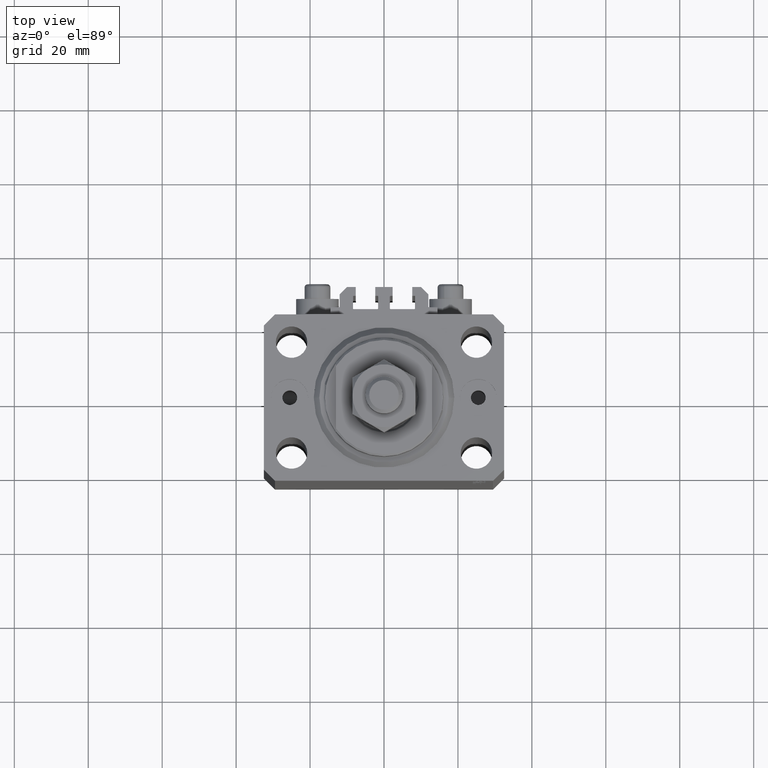
[diagram: clean part render]
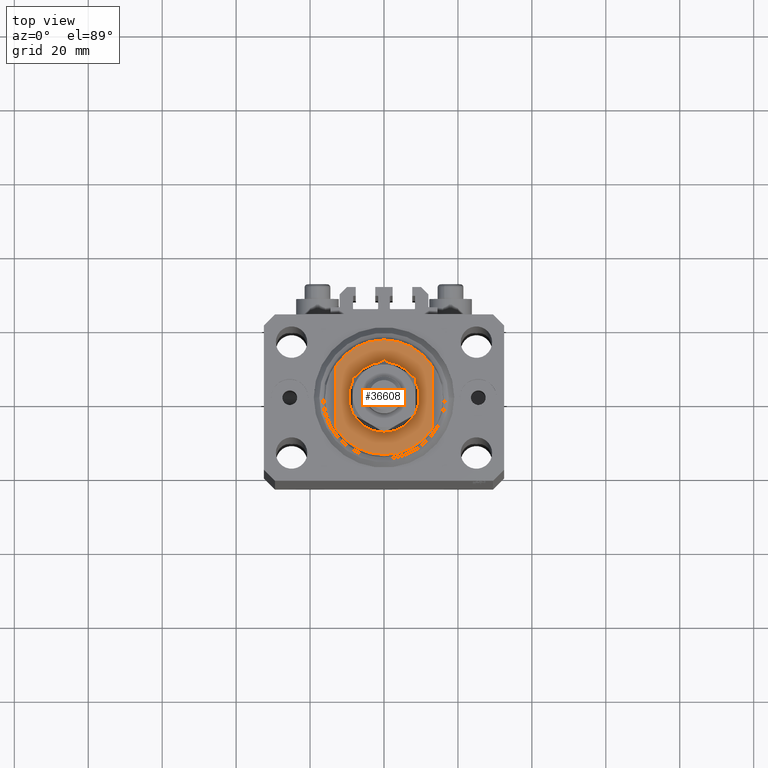
[diagram: same view with one face highlighted and labeled with its STEP entity id]
A machine part, top view. The second image highlights one B-rep face of the part: STEP entity #36608.
In plain terms, the highlighted planar face has unit normal (0, 0, 1).
Its self-contained STEP definition (entity closure, byte-faithful):
#964 = CARTESIAN_POINT ( 'NONE',  ( 0.000000000000000000, 0.000000000000000000, -6.500000000000000000 ) ) ;
#3727 = VECTOR ( 'NONE', #36589, 1000.000000000000000 ) ;
#4037 = DIRECTION ( 'NONE',  ( -1.000000000000000000, 0.000000000000000000, 0.000000000000000000 ) ) ;
#4156 = VERTEX_POINT ( 'NONE', #4660 ) ;
#4660 = CARTESIAN_POINT ( 'NONE',  ( 9.500000000000001776, 1.163414459189985880E-15, -6.500000000000000000 ) ) ;
#7306 = EDGE_LOOP ( 'NONE', ( #34857, #40078, #40471, #40811 ) ) ;
#7392 = PLANE ( 'NONE',  #27098 ) ;
#8937 = CIRCLE ( 'NONE', #46748, 15.50000000000003730 ) ;
#8969 = CIRCLE ( 'NONE', #38871, 9.500000000000001776 ) ;
#9792 = EDGE_CURVE ( 'NONE', #15096, #4156, #8969, .T. ) ;
#9937 = ORIENTED_EDGE ( 'NONE', *, *, #48440, .T. ) ;
#11103 = FACE_OUTER_BOUND ( 'NONE', #7306, .T. ) ;
#12528 = CIRCLE ( 'NONE', #23534, 9.500000000000001776 ) ;
#12942 = CARTESIAN_POINT ( 'NONE',  ( -13.00000000000000000, -43.08131845707602992, -6.500000000000000000 ) ) ;
#13660 = LINE ( 'NONE', #12942, #3727 ) ;
#14418 = EDGE_CURVE ( 'NONE', #26967, #18485, #21772, .T. ) ;
#15096 = VERTEX_POINT ( 'NONE', #43496 ) ;
#16306 = DIRECTION ( 'NONE',  ( -0.000000000000000000, -0.000000000000000000, 1.000000000000000000 ) ) ;
#18485 = VERTEX_POINT ( 'NONE', #25287 ) ;
#19935 = CARTESIAN_POINT ( 'NONE',  ( 0.000000000000000000, 0.000000000000000000, -6.500000000000000000 ) ) ;
#20435 = DIRECTION ( 'NONE',  ( -1.000000000000000000, 0.000000000000000000, -0.000000000000000000 ) ) ;
#21772 = LINE ( 'NONE', #24986, #42039 ) ;
#21972 = EDGE_LOOP ( 'NONE', ( #25691, #9937 ) ) ;
#22489 = CIRCLE ( 'NONE', #24731, 15.50000000000003730 ) ;
#23448 = DIRECTION ( 'NONE',  ( -1.000000000000000000, 0.000000000000000000, 0.000000000000000000 ) ) ;
#23534 = AXIS2_PLACEMENT_3D ( 'NONE', #28572, #24614, #42877 ) ;
#24614 = DIRECTION ( 'NONE',  ( -0.000000000000000000, -0.000000000000000000, 1.000000000000000000 ) ) ;
#24731 = AXIS2_PLACEMENT_3D ( 'NONE', #964, #42876, #38203 ) ;
#24986 = CARTESIAN_POINT ( 'NONE',  ( 13.00000000000000000, -43.08131845707602992, -6.500000000000000000 ) ) ;
#25287 = CARTESIAN_POINT ( 'NONE',  ( 13.00000000000000000, -8.440971508067137918, -6.500000000000000000 ) ) ;
#25691 = ORIENTED_EDGE ( 'NONE', *, *, #9792, .T. ) ;
#26720 = CARTESIAN_POINT ( 'NONE',  ( 0.000000000000000000, 0.000000000000000000, -6.500000000000000000 ) ) ;
#26967 = VERTEX_POINT ( 'NONE', #45075 ) ;
#27098 = AXIS2_PLACEMENT_3D ( 'NONE', #19935, #27354, #20435 ) ;
#27354 = DIRECTION ( 'NONE',  ( 0.000000000000000000, 0.000000000000000000, -1.000000000000000000 ) ) ;
#28572 = CARTESIAN_POINT ( 'NONE',  ( 0.000000000000000000, 0.000000000000000000, -6.500000000000000000 ) ) ;
#30810 = CARTESIAN_POINT ( 'NONE',  ( -13.00000000000000000, 8.440971508067137918, -6.500000000000000000 ) ) ;
#32085 = EDGE_CURVE ( 'NONE', #18485, #43937, #8937, .T. ) ;
#33203 = DIRECTION ( 'NONE',  ( 0.000000000000000000, 0.000000000000000000, -1.000000000000000000 ) ) ;
#34857 = ORIENTED_EDGE ( 'NONE', *, *, #36634, .T. ) ;
#36589 = DIRECTION ( 'NONE',  ( -0.000000000000000000, -1.000000000000000000, -0.000000000000000000 ) ) ;
#36608 = ADVANCED_FACE ( 'NONE', ( #48590, #11103 ), #7392, .T. ) ;
#36634 = EDGE_CURVE ( 'NONE', #36691, #26967, #22489, .T. ) ;
#36691 = VERTEX_POINT ( 'NONE', #30810 ) ;
#36829 = DIRECTION ( 'NONE',  ( 0.000000000000000000, -1.000000000000000000, -0.000000000000000000 ) ) ;
#38010 = CARTESIAN_POINT ( 'NONE',  ( 0.000000000000000000, 0.000000000000000000, -6.500000000000000000 ) ) ;
#38203 = DIRECTION ( 'NONE',  ( -1.000000000000000000, 0.000000000000000000, 0.000000000000000000 ) ) ;
#38871 = AXIS2_PLACEMENT_3D ( 'NONE', #38010, #16306, #23448 ) ;
#40078 = ORIENTED_EDGE ( 'NONE', *, *, #14418, .T. ) ;
#40471 = ORIENTED_EDGE ( 'NONE', *, *, #32085, .T. ) ;
#40811 = ORIENTED_EDGE ( 'NONE', *, *, #43651, .F. ) ;
#42039 = VECTOR ( 'NONE', #36829, 1000.000000000000000 ) ;
#42876 = DIRECTION ( 'NONE',  ( 0.000000000000000000, 0.000000000000000000, -1.000000000000000000 ) ) ;
#42877 = DIRECTION ( 'NONE',  ( -1.000000000000000000, 0.000000000000000000, 0.000000000000000000 ) ) ;
#43496 = CARTESIAN_POINT ( 'NONE',  ( -9.500000000000001776, 0.000000000000000000, -6.500000000000000000 ) ) ;
#43651 = EDGE_CURVE ( 'NONE', #36691, #43937, #13660, .T. ) ;
#43937 = VERTEX_POINT ( 'NONE', #48612 ) ;
#45075 = CARTESIAN_POINT ( 'NONE',  ( 13.00000000000000000, 8.440971508067137918, -6.500000000000000000 ) ) ;
#46748 = AXIS2_PLACEMENT_3D ( 'NONE', #26720, #33203, #4037 ) ;
#48440 = EDGE_CURVE ( 'NONE', #4156, #15096, #12528, .T. ) ;
#48590 = FACE_BOUND ( 'NONE', #21972, .T. ) ;
#48612 = CARTESIAN_POINT ( 'NONE',  ( -13.00000000000000000, -8.440971508067137918, -6.500000000000000000 ) ) ;